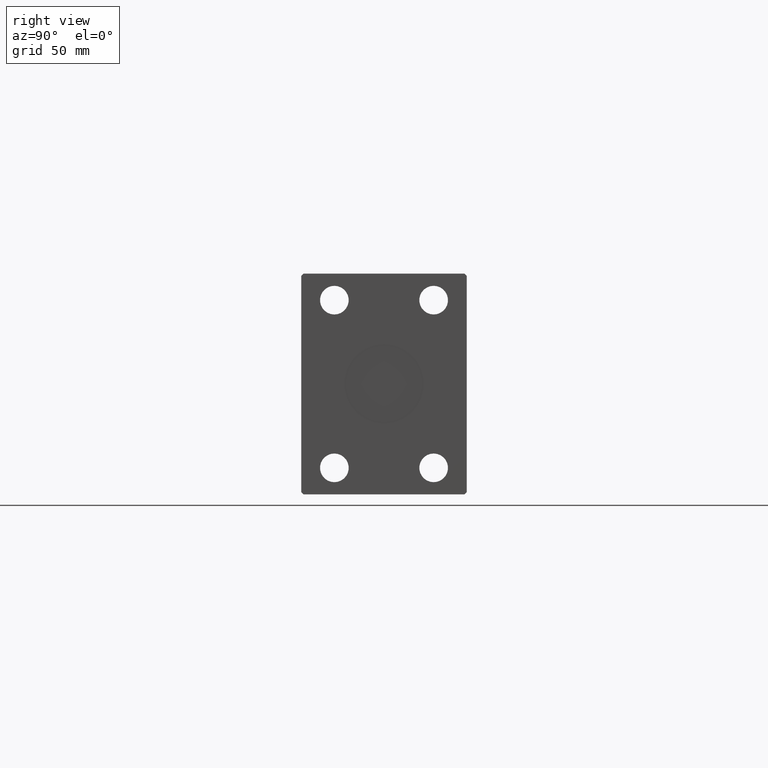
[diagram: clean part render]
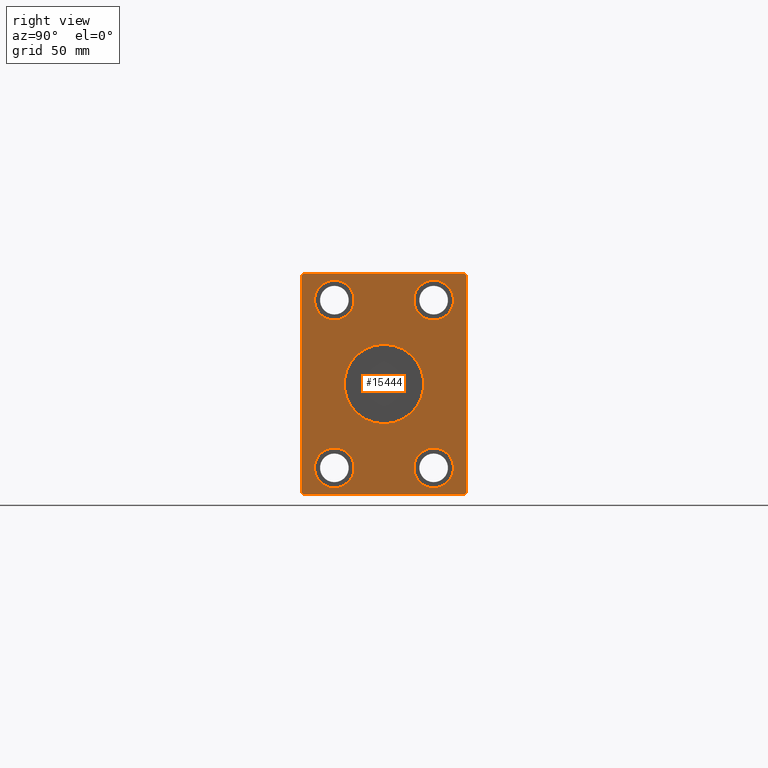
[diagram: same view with one face highlighted and labeled with its STEP entity id]
A machine part, right view. The second image highlights one B-rep face of the part: STEP entity #15444.
In plain terms, the highlighted planar face has unit normal (1, 0, 0).
Its self-contained STEP definition (entity closure, byte-faithful):
#119 = LINE ( 'NONE', #33211, #32430 ) ;
#513 = DIRECTION ( 'NONE',  ( 0.000000000000000000, 0.000000000000000000, -1.000000000000000000 ) ) ;
#550 = LINE ( 'NONE', #23323, #13698 ) ;
#663 = CARTESIAN_POINT ( 'NONE',  ( 307.0000000000000000, 22.50000000000000000, -28.99999999999999645 ) ) ;
#896 = EDGE_CURVE ( 'NONE', #31179, #34182, #32010, .T. ) ;
#994 = VERTEX_POINT ( 'NONE', #36077 ) ;
#1069 = CARTESIAN_POINT ( 'NONE',  ( 307.0000000000000000, -36.50000000000001421, 49.99999999999998579 ) ) ;
#1112 = DIRECTION ( 'NONE',  ( 0.000000000000000000, 0.7071067811865474617, 0.7071067811865474617 ) ) ;
#1487 = FACE_BOUND ( 'NONE', #22582, .T. ) ;
#2238 = ORIENTED_EDGE ( 'NONE', *, *, #15724, .F. ) ;
#2592 = EDGE_CURVE ( 'NONE', #31190, #994, #40439, .T. ) ;
#2946 = EDGE_LOOP ( 'NONE', ( #21745, #8056, #5808, #31152, #34799, #11607, #28665, #20664 ) ) ;
#2995 = VERTEX_POINT ( 'NONE', #23754 ) ;
#3098 = VERTEX_POINT ( 'NONE', #31260 ) ;
#3127 = LINE ( 'NONE', #6565, #13640 ) ;
#3328 = CARTESIAN_POINT ( 'NONE',  ( 307.0000000000000000, 2.204364238465235428E-15, 18.00000000000000000 ) ) ;
#3594 = CIRCLE ( 'NONE', #33111, 9.000000000000001776 ) ;
#3724 = CIRCLE ( 'NONE', #11266, 9.000000000000001776 ) ;
#3786 = EDGE_LOOP ( 'NONE', ( #4529, #18259 ) ) ;
#4020 = DIRECTION ( 'NONE',  ( 1.000000000000000000, 0.000000000000000000, 0.000000000000000000 ) ) ;
#4359 = CARTESIAN_POINT ( 'NONE',  ( 307.0000000000000000, -37.50000000000001421, 48.99999999999998579 ) ) ;
#4403 = DIRECTION ( 'NONE',  ( 0.000000000000000000, -0.7071067811865474617, -0.7071067811865474617 ) ) ;
#4529 = ORIENTED_EDGE ( 'NONE', *, *, #33959, .T. ) ;
#4657 = DIRECTION ( 'NONE',  ( 0.000000000000000000, 0.000000000000000000, -1.000000000000000000 ) ) ;
#5386 = VECTOR ( 'NONE', #28620, 1000.000000000000114 ) ;
#5657 = AXIS2_PLACEMENT_3D ( 'NONE', #15244, #34795, #41233 ) ;
#5806 = CARTESIAN_POINT ( 'NONE',  ( 307.0000000000000000, 37.50000000000000711, 49.00000000000000000 ) ) ;
#5808 = ORIENTED_EDGE ( 'NONE', *, *, #24077, .T. ) ;
#6322 = ORIENTED_EDGE ( 'NONE', *, *, #19094, .T. ) ;
#6450 = VERTEX_POINT ( 'NONE', #40995 ) ;
#6565 = CARTESIAN_POINT ( 'NONE',  ( 307.0000000000000000, -36.50000000000000711, -50.00000000000000000 ) ) ;
#7064 = VERTEX_POINT ( 'NONE', #18984 ) ;
#7178 = DIRECTION ( 'NONE',  ( 1.000000000000000000, -0.000000000000000000, -0.000000000000000000 ) ) ;
#7356 = CARTESIAN_POINT ( 'NONE',  ( 307.0000000000000000, 36.50000000000000711, -50.00000000000000000 ) ) ;
#7390 = EDGE_CURVE ( 'NONE', #12083, #2995, #11217, .T. ) ;
#7453 = DIRECTION ( 'NONE',  ( -1.000000000000000000, -0.000000000000000000, -0.000000000000000000 ) ) ;
#7598 = DIRECTION ( 'NONE',  ( 0.000000000000000000, 0.000000000000000000, -1.000000000000000000 ) ) ;
#7680 = DIRECTION ( 'NONE',  ( 0.000000000000000000, 0.000000000000000000, -1.000000000000000000 ) ) ;
#7767 = AXIS2_PLACEMENT_3D ( 'NONE', #24352, #13635, #7598 ) ;
#8056 = ORIENTED_EDGE ( 'NONE', *, *, #37507, .T. ) ;
#8224 = CARTESIAN_POINT ( 'NONE',  ( 307.0000000000000000, -22.50000000000000000, 47.00000000000000000 ) ) ;
#8607 = VECTOR ( 'NONE', #1112, 1000.000000000000114 ) ;
#8876 = CARTESIAN_POINT ( 'NONE',  ( 307.0000000000000000, 22.50000000000000000, 28.99999999999999645 ) ) ;
#9762 = EDGE_CURVE ( 'NONE', #2995, #31179, #9772, .T. ) ;
#9772 = LINE ( 'NONE', #31915, #25823 ) ;
#9912 = VECTOR ( 'NONE', #17469, 1000.000000000000000 ) ;
#10740 = FACE_OUTER_BOUND ( 'NONE', #2946, .T. ) ;
#10842 = CIRCLE ( 'NONE', #12243, 9.000000000000001776 ) ;
#10947 = CARTESIAN_POINT ( 'NONE',  ( 307.0000000000000000, 0.000000000000000000, 0.000000000000000000 ) ) ;
#11210 = CIRCLE ( 'NONE', #7767, 9.000000000000001776 ) ;
#11217 = LINE ( 'NONE', #7356, #8607 ) ;
#11227 = VERTEX_POINT ( 'NONE', #40898 ) ;
#11266 = AXIS2_PLACEMENT_3D ( 'NONE', #20998, #37967, #7680 ) ;
#11607 = ORIENTED_EDGE ( 'NONE', *, *, #20665, .T. ) ;
#11669 = EDGE_CURVE ( 'NONE', #33188, #34805, #42334, .T. ) ;
#12083 = VERTEX_POINT ( 'NONE', #20052 ) ;
#12243 = AXIS2_PLACEMENT_3D ( 'NONE', #35973, #7178, #513 ) ;
#12289 = EDGE_LOOP ( 'NONE', ( #6322, #42277 ) ) ;
#12340 = VERTEX_POINT ( 'NONE', #663 ) ;
#12879 = CARTESIAN_POINT ( 'NONE',  ( 307.0000000000000000, 37.50000000000000711, 49.00000000000000000 ) ) ;
#13635 = DIRECTION ( 'NONE',  ( 1.000000000000000000, -0.000000000000000000, -0.000000000000000000 ) ) ;
#13640 = VECTOR ( 'NONE', #36002, 1000.000000000000000 ) ;
#13659 = DIRECTION ( 'NONE',  ( 0.000000000000000000, -1.000000000000000000, -1.901066822988281457E-16 ) ) ;
#13698 = VECTOR ( 'NONE', #4403, 1000.000000000000114 ) ;
#13703 = CARTESIAN_POINT ( 'NONE',  ( 307.0000000000000000, 0.000000000000000000, 0.000000000000000000 ) ) ;
#13713 = ORIENTED_EDGE ( 'NONE', *, *, #42250, .F. ) ;
#13965 = PLANE ( 'NONE',  #38988 ) ;
#14372 = AXIS2_PLACEMENT_3D ( 'NONE', #41554, #28462, #19630 ) ;
#14848 = EDGE_CURVE ( 'NONE', #17645, #16379, #10842, .T. ) ;
#15244 = CARTESIAN_POINT ( 'NONE',  ( 307.0000000000000000, -22.50000000000000000, 38.00000000000000000 ) ) ;
#15444 = ADVANCED_FACE ( 'NONE', ( #33716, #37581, #24261, #10740, #1487, #30280 ), #13965, .T. ) ;
#15724 = EDGE_CURVE ( 'NONE', #34805, #33188, #41757, .T. ) ;
#16379 = VERTEX_POINT ( 'NONE', #24325 ) ;
#17272 = EDGE_CURVE ( 'NONE', #17691, #6450, #28673, .T. ) ;
#17469 = DIRECTION ( 'NONE',  ( 0.000000000000000000, 0.000000000000000000, -1.000000000000000000 ) ) ;
#17645 = VERTEX_POINT ( 'NONE', #32731 ) ;
#17691 = VERTEX_POINT ( 'NONE', #8876 ) ;
#17835 = DIRECTION ( 'NONE',  ( 1.000000000000000000, -0.000000000000000000, -0.000000000000000000 ) ) ;
#18259 = ORIENTED_EDGE ( 'NONE', *, *, #37299, .T. ) ;
#18984 = CARTESIAN_POINT ( 'NONE',  ( 307.0000000000000000, -36.50000000000000711, -50.00000000000000000 ) ) ;
#19094 = EDGE_CURVE ( 'NONE', #3098, #12340, #34181, .T. ) ;
#19366 = CARTESIAN_POINT ( 'NONE',  ( 307.0000000000000000, -37.50000000000001421, -49.00000000000000000 ) ) ;
#19439 = DIRECTION ( 'NONE',  ( 0.000000000000000000, 0.000000000000000000, 1.000000000000000000 ) ) ;
#19630 = DIRECTION ( 'NONE',  ( 0.000000000000000000, 0.000000000000000000, 1.000000000000000000 ) ) ;
#20052 = CARTESIAN_POINT ( 'NONE',  ( 307.0000000000000000, 36.50000000000000711, -50.00000000000000000 ) ) ;
#20569 = DIRECTION ( 'NONE',  ( 1.000000000000000000, 0.000000000000000000, 0.000000000000000000 ) ) ;
#20664 = ORIENTED_EDGE ( 'NONE', *, *, #9762, .T. ) ;
#20665 = EDGE_CURVE ( 'NONE', #7064, #12083, #3127, .T. ) ;
#20998 = CARTESIAN_POINT ( 'NONE',  ( 307.0000000000000000, 22.50000000000000000, 38.00000000000000000 ) ) ;
#21150 = EDGE_CURVE ( 'NONE', #994, #7064, #21312, .T. ) ;
#21312 = LINE ( 'NONE', #19366, #5386 ) ;
#21511 = EDGE_LOOP ( 'NONE', ( #26179, #13713 ) ) ;
#21612 = ORIENTED_EDGE ( 'NONE', *, *, #39829, .F. ) ;
#21745 = ORIENTED_EDGE ( 'NONE', *, *, #896, .T. ) ;
#22582 = EDGE_LOOP ( 'NONE', ( #38950, #21612 ) ) ;
#23241 = AXIS2_PLACEMENT_3D ( 'NONE', #13703, #4020, #30229 ) ;
#23323 = CARTESIAN_POINT ( 'NONE',  ( 307.0000000000000000, -36.50000000000001421, 49.99999999999998579 ) ) ;
#23754 = CARTESIAN_POINT ( 'NONE',  ( 307.0000000000000000, 37.50000000000000711, -49.00000000000000000 ) ) ;
#23988 = DIRECTION ( 'NONE',  ( 0.000000000000000000, 0.000000000000000000, 1.000000000000000000 ) ) ;
#24077 = EDGE_CURVE ( 'NONE', #35696, #31190, #550, .T. ) ;
#24261 = FACE_BOUND ( 'NONE', #12289, .T. ) ;
#24308 = EDGE_CURVE ( 'NONE', #12340, #3098, #32893, .T. ) ;
#24325 = CARTESIAN_POINT ( 'NONE',  ( 307.0000000000000000, -22.50000000000000000, -28.99999999999999645 ) ) ;
#24352 = CARTESIAN_POINT ( 'NONE',  ( 307.0000000000000000, -22.50000000000000000, -38.00000000000000000 ) ) ;
#25296 = VERTEX_POINT ( 'NONE', #8224 ) ;
#25620 = VECTOR ( 'NONE', #38036, 1000.000000000000114 ) ;
#25687 = DIRECTION ( 'NONE',  ( -1.000000000000000000, -0.000000000000000000, -0.000000000000000000 ) ) ;
#25823 = VECTOR ( 'NONE', #19439, 1000.000000000000000 ) ;
#26179 = ORIENTED_EDGE ( 'NONE', *, *, #17272, .F. ) ;
#26348 = CARTESIAN_POINT ( 'NONE',  ( 307.0000000000000000, 0.000000000000000000, -18.00000000000000000 ) ) ;
#27609 = CIRCLE ( 'NONE', #5657, 9.000000000000001776 ) ;
#28462 = DIRECTION ( 'NONE',  ( -1.000000000000000000, -0.000000000000000000, -0.000000000000000000 ) ) ;
#28620 = DIRECTION ( 'NONE',  ( 0.000000000000000000, 0.7071067811865500152, -0.7071067811865451302 ) ) ;
#28665 = ORIENTED_EDGE ( 'NONE', *, *, #7390, .T. ) ;
#28673 = CIRCLE ( 'NONE', #36979, 9.000000000000001776 ) ;
#28702 = AXIS2_PLACEMENT_3D ( 'NONE', #35097, #7453, #23988 ) ;
#30229 = DIRECTION ( 'NONE',  ( 0.000000000000000000, 0.000000000000000000, -1.000000000000000000 ) ) ;
#30280 = FACE_BOUND ( 'NONE', #21511, .T. ) ;
#30871 = CARTESIAN_POINT ( 'NONE',  ( 307.0000000000000000, 0.000000000000000000, 0.000000000000000000 ) ) ;
#31152 = ORIENTED_EDGE ( 'NONE', *, *, #2592, .T. ) ;
#31179 = VERTEX_POINT ( 'NONE', #5806 ) ;
#31190 = VERTEX_POINT ( 'NONE', #32005 ) ;
#31260 = CARTESIAN_POINT ( 'NONE',  ( 307.0000000000000000, 22.50000000000000000, -47.00000000000000000 ) ) ;
#31371 = AXIS2_PLACEMENT_3D ( 'NONE', #30871, #20569, #4657 ) ;
#31915 = CARTESIAN_POINT ( 'NONE',  ( 307.0000000000000000, 37.50000000000000711, -49.00000000000000000 ) ) ;
#32005 = CARTESIAN_POINT ( 'NONE',  ( 307.0000000000000000, -37.50000000000001421, 48.99999999999998579 ) ) ;
#32010 = LINE ( 'NONE', #12879, #25620 ) ;
#32430 = VECTOR ( 'NONE', #13659, 1000.000000000000000 ) ;
#32731 = CARTESIAN_POINT ( 'NONE',  ( 307.0000000000000000, -22.50000000000000000, -47.00000000000000000 ) ) ;
#32893 = CIRCLE ( 'NONE', #14372, 9.000000000000001776 ) ;
#33111 = AXIS2_PLACEMENT_3D ( 'NONE', #38787, #25687, #42419 ) ;
#33188 = VERTEX_POINT ( 'NONE', #26348 ) ;
#33211 = CARTESIAN_POINT ( 'NONE',  ( 307.0000000000000000, 36.50000000000000711, 50.00000000000000000 ) ) ;
#33716 = FACE_BOUND ( 'NONE', #37629, .T. ) ;
#33959 = EDGE_CURVE ( 'NONE', #11227, #25296, #3594, .T. ) ;
#34138 = DIRECTION ( 'NONE',  ( 1.000000000000000000, 0.000000000000000000, 0.000000000000000000 ) ) ;
#34161 = CARTESIAN_POINT ( 'NONE',  ( 307.0000000000000000, 22.50000000000000000, 38.00000000000000000 ) ) ;
#34181 = CIRCLE ( 'NONE', #28702, 9.000000000000001776 ) ;
#34182 = VERTEX_POINT ( 'NONE', #36630 ) ;
#34795 = DIRECTION ( 'NONE',  ( -1.000000000000000000, -0.000000000000000000, -0.000000000000000000 ) ) ;
#34799 = ORIENTED_EDGE ( 'NONE', *, *, #21150, .T. ) ;
#34802 = DIRECTION ( 'NONE',  ( 0.000000000000000000, 0.000000000000000000, -1.000000000000000000 ) ) ;
#34805 = VERTEX_POINT ( 'NONE', #3328 ) ;
#35097 = CARTESIAN_POINT ( 'NONE',  ( 307.0000000000000000, 22.50000000000000000, -38.00000000000000000 ) ) ;
#35696 = VERTEX_POINT ( 'NONE', #1069 ) ;
#35973 = CARTESIAN_POINT ( 'NONE',  ( 307.0000000000000000, -22.50000000000000000, -38.00000000000000000 ) ) ;
#36002 = DIRECTION ( 'NONE',  ( 0.000000000000000000, 1.000000000000000000, 0.000000000000000000 ) ) ;
#36077 = CARTESIAN_POINT ( 'NONE',  ( 307.0000000000000000, -37.50000000000001421, -49.00000000000000000 ) ) ;
#36630 = CARTESIAN_POINT ( 'NONE',  ( 307.0000000000000000, 36.50000000000000711, 50.00000000000000000 ) ) ;
#36944 = DIRECTION ( 'NONE',  ( 0.000000000000000000, 0.000000000000000000, -1.000000000000000000 ) ) ;
#36979 = AXIS2_PLACEMENT_3D ( 'NONE', #34161, #17835, #34802 ) ;
#37299 = EDGE_CURVE ( 'NONE', #25296, #11227, #27609, .T. ) ;
#37507 = EDGE_CURVE ( 'NONE', #34182, #35696, #119, .T. ) ;
#37581 = FACE_BOUND ( 'NONE', #3786, .T. ) ;
#37629 = EDGE_LOOP ( 'NONE', ( #40605, #2238 ) ) ;
#37967 = DIRECTION ( 'NONE',  ( 1.000000000000000000, -0.000000000000000000, -0.000000000000000000 ) ) ;
#38036 = DIRECTION ( 'NONE',  ( 0.000000000000000000, -0.7071067811865474617, 0.7071067811865474617 ) ) ;
#38787 = CARTESIAN_POINT ( 'NONE',  ( 307.0000000000000000, -22.50000000000000000, 38.00000000000000000 ) ) ;
#38950 = ORIENTED_EDGE ( 'NONE', *, *, #14848, .F. ) ;
#38988 = AXIS2_PLACEMENT_3D ( 'NONE', #10947, #34138, #36944 ) ;
#39829 = EDGE_CURVE ( 'NONE', #16379, #17645, #11210, .T. ) ;
#40439 = LINE ( 'NONE', #4359, #9912 ) ;
#40605 = ORIENTED_EDGE ( 'NONE', *, *, #11669, .F. ) ;
#40898 = CARTESIAN_POINT ( 'NONE',  ( 307.0000000000000000, -22.50000000000000000, 28.99999999999999645 ) ) ;
#40995 = CARTESIAN_POINT ( 'NONE',  ( 307.0000000000000000, 22.50000000000000000, 47.00000000000000000 ) ) ;
#41233 = DIRECTION ( 'NONE',  ( 0.000000000000000000, 0.000000000000000000, 1.000000000000000000 ) ) ;
#41554 = CARTESIAN_POINT ( 'NONE',  ( 307.0000000000000000, 22.50000000000000000, -38.00000000000000000 ) ) ;
#41757 = CIRCLE ( 'NONE', #23241, 18.00000000000000000 ) ;
#42250 = EDGE_CURVE ( 'NONE', #6450, #17691, #3724, .T. ) ;
#42277 = ORIENTED_EDGE ( 'NONE', *, *, #24308, .T. ) ;
#42334 = CIRCLE ( 'NONE', #31371, 18.00000000000000000 ) ;
#42419 = DIRECTION ( 'NONE',  ( 0.000000000000000000, 0.000000000000000000, 1.000000000000000000 ) ) ;